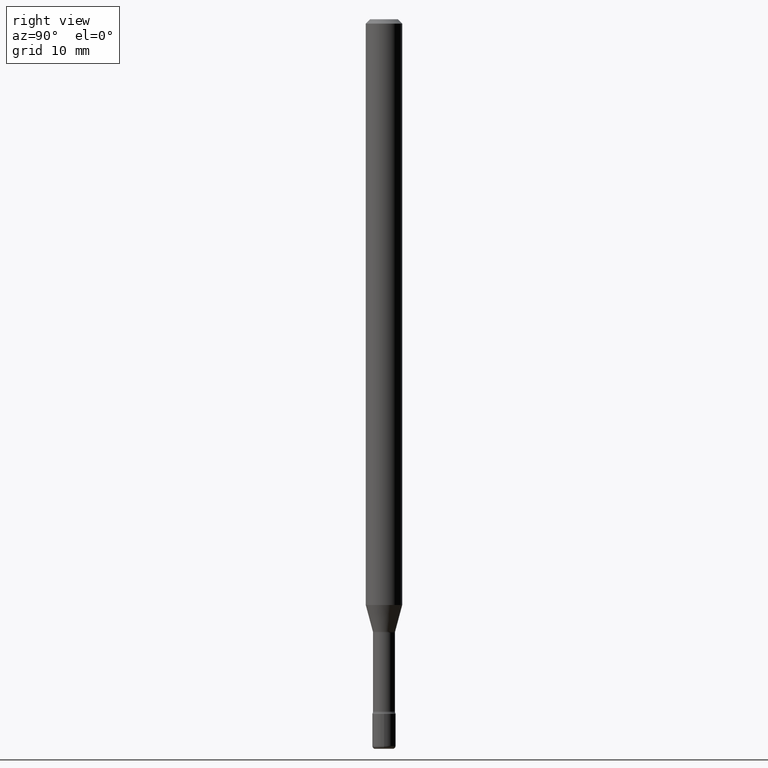
[diagram: clean part render]
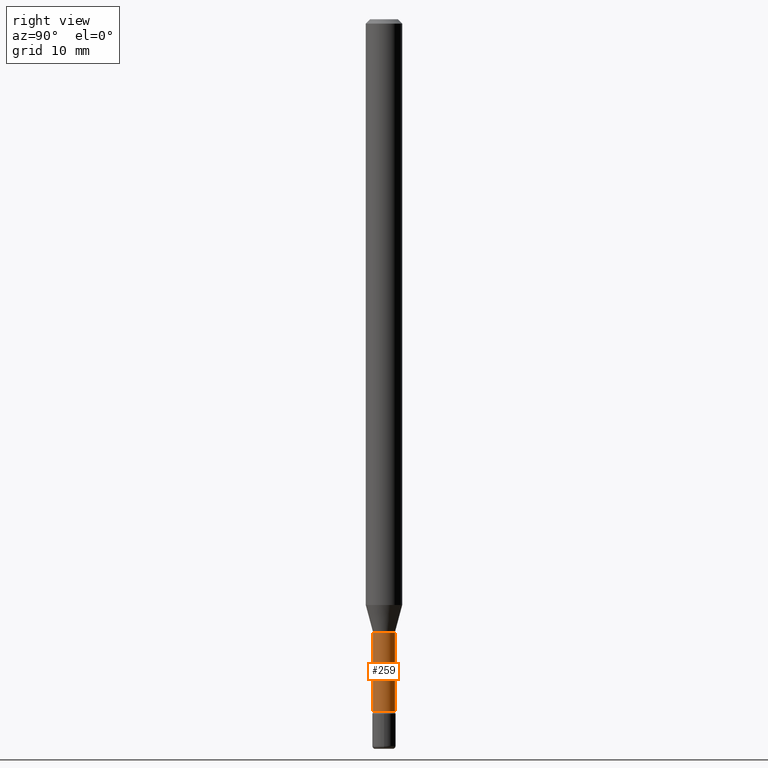
[diagram: same view with one face highlighted and labeled with its STEP entity id]
A machine part, right view. The second image highlights one B-rep face of the part: STEP entity #259.
In plain terms, the highlighted cylindrical surface (edge-blend (fillet) strip) has radius 0.955 mm, axis along (-0, 0, 1).
Its self-contained STEP definition (entity closure, byte-faithful):
#7 = VERTEX_POINT ( 'NONE', #454 ) ;
#8 = CARTESIAN_POINT ( 'NONE',  ( -2.625593966809521792E-16, -0.03760000000000733589, -2.101974787463810834 ) ) ;
#43 = CARTESIAN_POINT ( 'NONE',  ( 5.799948008803896804E-29, -8.281831228936231021E-15, -2.371861204020250025 ) ) ;
#45 = DIRECTION ( 'NONE',  ( -2.445315096420110410E-29, 3.491701459975279518E-15, 1.000000000000000000 ) ) ;
#51 = DIRECTION ( 'NONE',  ( -2.445315096420110130E-29, 3.491701459975279518E-15, 1.000000000000000000 ) ) ;
#55 = EDGE_CURVE ( 'NONE', #128, #66, #227, .T. ) ;
#66 = VERTEX_POINT ( 'NONE', #116 ) ;
#70 = AXIS2_PLACEMENT_3D ( 'NONE', #43, #45, #351 ) ;
#93 = AXIS2_PLACEMENT_3D ( 'NONE', #252, #334, #163 ) ;
#116 = CARTESIAN_POINT ( 'NONE',  ( 2.756905814749770095E-16, 0.03759999999999177195, -2.371861204020250025 ) ) ;
#124 = CARTESIAN_POINT ( 'NONE',  ( 5.139990680079710222E-29, -7.339468434218616322E-15, -2.101974787463810834 ) ) ;
#128 = VERTEX_POINT ( 'NONE', #374 ) ;
#149 = CYLINDRICAL_SURFACE ( 'NONE', #93, 0.03760000000000002923 ) ;
#163 = DIRECTION ( 'NONE',  ( -6.982962677686265922E-15, -1.000000000000000000, 3.491701459975280701E-15 ) ) ;
#197 = ORIENTED_EDGE ( 'NONE', *, *, #370, .F. ) ;
#213 = EDGE_CURVE ( 'NONE', #66, #7, #343, .T. ) ;
#227 = CIRCLE ( 'NONE', #70, 0.03760000000000005699 ) ;
#228 = VECTOR ( 'NONE', #51, 39.37007874015748143 ) ;
#244 = CARTESIAN_POINT ( 'NONE',  ( 2.671640686457978776E-16, 0.03760000000000002923, 3.467854239961754309E-16 ) ) ;
#252 = CARTESIAN_POINT ( 'NONE',  ( -1.169113584055446105E-44, 1.669184350826100908E-30, 4.780733988912460139E-16 ) ) ;
#259 = ADVANCED_FACE ( 'NONE', ( #398 ), #149, .T. ) ;
#268 = AXIS2_PLACEMENT_3D ( 'NONE', #124, #395, #453 ) ;
#269 = CARTESIAN_POINT ( 'NONE',  ( -2.625593966810038003E-16, -0.03760000000000002923, 6.093613737863167448E-16 ) ) ;
#304 = EDGE_LOOP ( 'NONE', ( #548, #382, #496, #197 ) ) ;
#334 = DIRECTION ( 'NONE',  ( -2.445315096420110410E-29, 3.491701459975279518E-15, 1.000000000000000000 ) ) ;
#343 = LINE ( 'NONE', #244, #397 ) ;
#351 = DIRECTION ( 'NONE',  ( -6.982962677686265922E-15, -1.000000000000000000, 0.000000000000000000 ) ) ;
#370 = EDGE_CURVE ( 'NONE', #128, #553, #531, .T. ) ;
#374 = CARTESIAN_POINT ( 'NONE',  ( -2.625593966809460162E-16, -0.03760000000000833509, -2.371861204020250025 ) ) ;
#382 = ORIENTED_EDGE ( 'NONE', *, *, #213, .T. ) ;
#386 = DIRECTION ( 'NONE',  ( -2.445315096420110130E-29, 3.491701459975279518E-15, 1.000000000000000000 ) ) ;
#395 = DIRECTION ( 'NONE',  ( -2.445315096420110410E-29, 3.491701459975279518E-15, 1.000000000000000000 ) ) ;
#397 = VECTOR ( 'NONE', #386, 39.37007874015748143 ) ;
#398 = FACE_OUTER_BOUND ( 'NONE', #304, .T. ) ;
#435 = CIRCLE ( 'NONE', #268, 0.03760000000000000148 ) ;
#453 = DIRECTION ( 'NONE',  ( -6.982962677686265922E-15, -1.000000000000000000, 0.000000000000000000 ) ) ;
#454 = CARTESIAN_POINT ( 'NONE',  ( 2.671640686458558096E-16, 0.03759999999999266707, -2.101974787463810834 ) ) ;
#482 = EDGE_CURVE ( 'NONE', #553, #7, #435, .T. ) ;
#496 = ORIENTED_EDGE ( 'NONE', *, *, #482, .F. ) ;
#531 = LINE ( 'NONE', #269, #228 ) ;
#548 = ORIENTED_EDGE ( 'NONE', *, *, #55, .T. ) ;
#553 = VERTEX_POINT ( 'NONE', #8 ) ;